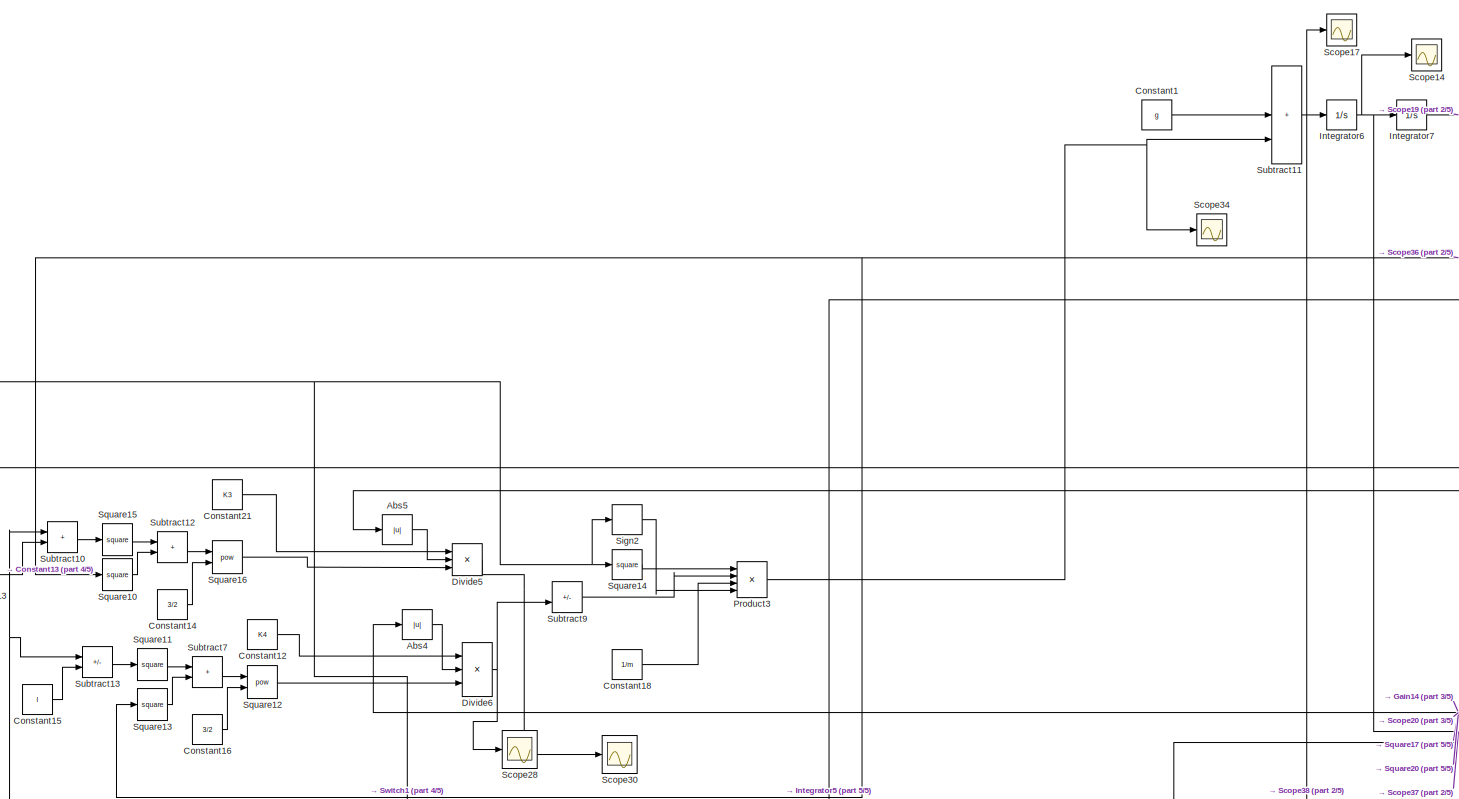
[diagram: root canvas - part 1/5, top right region]
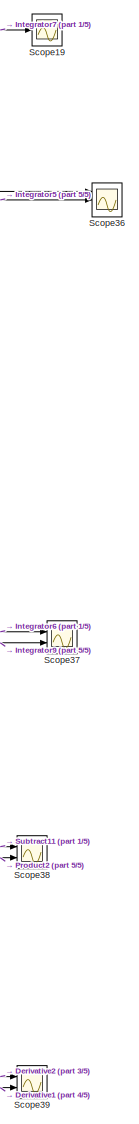
[diagram: root canvas - part 2/5, middle right region]
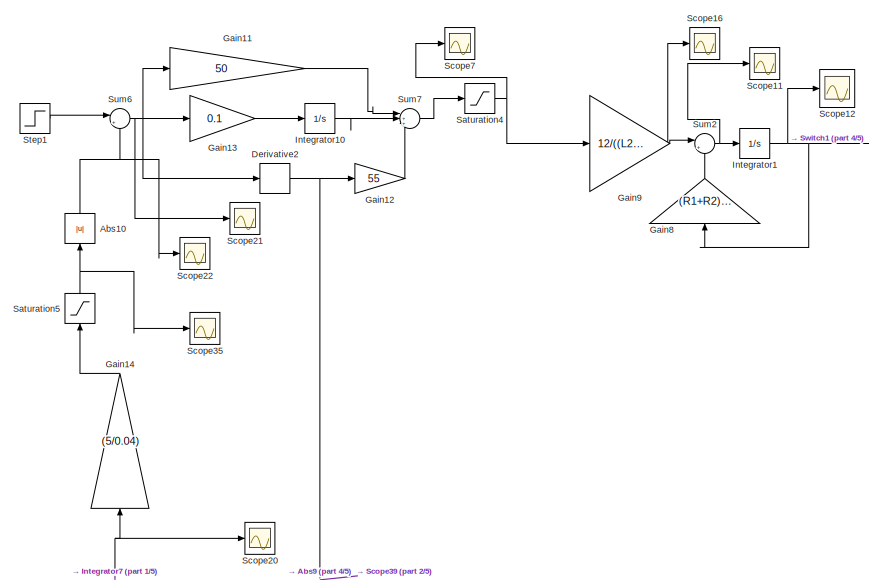
[diagram: root canvas - part 3/5, middle left region]
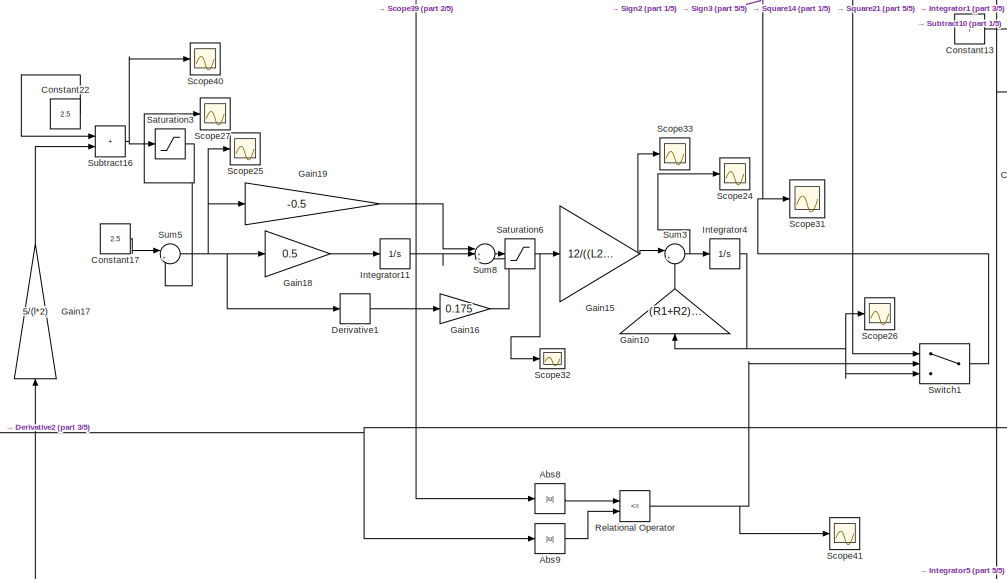
[diagram: root canvas - part 4/5, central region]
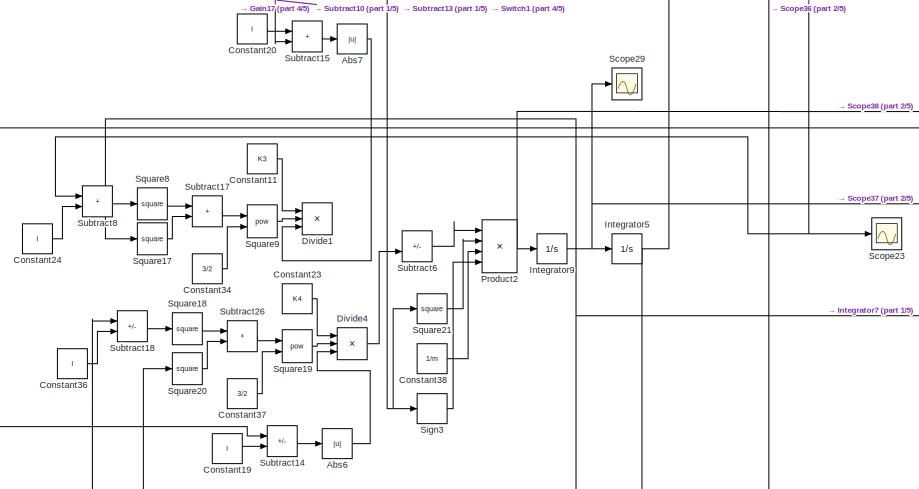
[diagram: root canvas - part 5/5, bottom right region]
MODEL mdl_a25b88f86b72
KIND model
CONFIG AbsTol = auto
CONFIG EnableMultiTasking = off
CONFIG FixedStep = 1e-3
CONFIG MaxStep = auto
CONFIG MinStep = auto
CONFIG RelTol = 1e-3
CONFIG SampleTimeConstraint = Unconstrained
CONFIG SolverName = ode3
CONFIG StartTime = 0.0
CONFIG StopTime = 5
BLOCK [Abs] Abs10
  NameLocation = right
  SaturateOnIntegerOverflow = off
BLOCK [Abs] Abs4
  SaturateOnIntegerOverflow = off
BLOCK [Abs] Abs5
  SaturateOnIntegerOverflow = off
BLOCK [Abs] Abs6
  SaturateOnIntegerOverflow = off
BLOCK [Abs] Abs7
  SaturateOnIntegerOverflow = off
BLOCK [Abs] Abs8
  SaturateOnIntegerOverflow = off
BLOCK [Abs] Abs9
  SaturateOnIntegerOverflow = off
BLOCK [Constant] Constant1
  Value = g
BLOCK [Constant] Constant11
  Value = K3
BLOCK [Constant] Constant12
  Value = K4
BLOCK [Constant] Constant13
  Value = l
BLOCK [Constant] Constant14
  Value = 3/2
BLOCK [Constant] Constant15
  Value = l
BLOCK [Constant] Constant16
  Value = 3/2
BLOCK [Constant] Constant17
  Value = 2.5
BLOCK [Constant] Constant18
  Value = 1/m
BLOCK [Constant] Constant19
  Value = l
BLOCK [Constant] Constant20
  Value = l
BLOCK [Constant] Constant21
  Value = K3
BLOCK [Constant] Constant22
  Value = 2.5
BLOCK [Constant] Constant23
  Value = K4
BLOCK [Constant] Constant24
  Value = l
BLOCK [Constant] Constant34
  Value = 3/2
BLOCK [Constant] Constant36
  Value = l
BLOCK [Constant] Constant37
  Value = 3/2
BLOCK [Constant] Constant38
  Value = 1/m
BLOCK [Derivative] Derivative1
BLOCK [Derivative] Derivative2
BLOCK [Product] Divide1
  Inputs = */*
  Ports = [3, 1]
BLOCK [Product] Divide4
  Inputs = */*
  Ports = [3, 1]
BLOCK [Product] Divide5
  Inputs = **/
  Ports = [3, 1]
BLOCK [Product] Divide6
  Inputs = **/
  Ports = [3, 1]
BLOCK [Gain] Gain10
  Gain = (R1+R2)/(L1+L2)
  NameLocation = right
BLOCK [Gain] Gain11
  Gain = 50
BLOCK [Gain] Gain12
  Gain = 55
BLOCK [Gain] Gain13
  Gain = 0.1
BLOCK [Gain] Gain14
  Gain = (5/0.04)
  NameLocation = right
BLOCK [Gain] Gain15
  Gain = 12/((L2+L1)*5)
BLOCK [Gain] Gain16
  Gain = 0.175
BLOCK [Gain] Gain17
  Gain = 5/(l*2)
  NameLocation = right
BLOCK [Gain] Gain18
  Gain = 0.5
BLOCK [Gain] Gain19
  Gain = -0.5
BLOCK [Gain] Gain8
  Gain = (R1+R2)/(L1+L2)
  NameLocation = right
BLOCK [Gain] Gain9
  Gain = 12/((L2+L1)*5)
BLOCK [Integrator] Integrator1
  Ports = [1, 1]
BLOCK [Integrator] Integrator10
  Ports = [1, 1]
BLOCK [Integrator] Integrator11
  Ports = [1, 1]
BLOCK [Integrator] Integrator4
  Ports = [1, 1]
BLOCK [Integrator] Integrator5
  InitialCondition = l
  Ports = [1, 1]
BLOCK [Integrator] Integrator6
  Ports = [1, 1]
BLOCK [Integrator] Integrator7
  InitialCondition = -0.03
  Ports = [1, 1]
BLOCK [Integrator] Integrator9
  Ports = [1, 1]
BLOCK [Product] Product2
  Inputs = 4
  Ports = [4, 1]
BLOCK [Product] Product3
  Inputs = 4
  Ports = [4, 1]
BLOCK [RelationalOperator] Relational Operator
  InputSameDT = off
  Operator = <=
  OutDataTypeStr = boolean
  Ports = [2, 1]
  RndMeth = Simplest
BLOCK [Saturate] Saturation3
  LowerLimit = 0
  UpperLimit = 5
BLOCK [Saturate] Saturation4
  LowerLimit = -5
  UpperLimit = 5
BLOCK [Saturate] Saturation5
  LowerLimit = -5
  NameLocation = right
  UpperLimit = 0
BLOCK [Saturate] Saturation6
  LowerLimit = -5
  UpperLimit = 5
BLOCK [Scope] Scope11
  Floating = off
  NumInputPorts = 1
  Ports = [1]
  ScopeSpecificationString = Simulink.scopes.TimeScopeBlockCfg('CurrentConfiguration', extmgr.ConfigurationSet(extmgr.Configuration('Core','General UI',true),extmgr.Configuration('Core','Source UI',true),extmgr.Configuration('Sources','WiredSimulink',true,'DataLoggingVariableName','ScopeData3'),extmgr.Configuration('Visuals','Time Domain',true,'SerializedDisplays',{struct('MinYLimReal','-41.79521','MaxYLimReal','56.73091','YL...<+1446ch>
BLOCK [Scope] Scope12
  Floating = off
  NumInputPorts = 1
  Ports = [1]
  ScopeSpecificationString = Simulink.scopes.TimeScopeBlockCfg('CurrentConfiguration', extmgr.ConfigurationSet(extmgr.Configuration('Core','General UI',true),extmgr.Configuration('Core','Source UI',true),extmgr.Configuration('Sources','WiredSimulink',true,'DataLoggingVariableName','ScopeData4'),extmgr.Configuration('Visuals','Time Domain',true,'SerializedDisplays',{struct('MinYLimReal','-1.53455','MaxYLimReal','1.83717','YLab...<+1399ch>
BLOCK [Scope] Scope14
  Floating = off
  NumInputPorts = 1
  Ports = [1]
  ScopeSpecificationString = Simulink.scopes.TimeScopeBlockCfg('CurrentConfiguration', extmgr.ConfigurationSet(extmgr.Configuration('Core','General UI',true),extmgr.Configuration('Core','Source UI',true),extmgr.Configuration('Sources','WiredSimulink',true,'DataLoggingVariableName','ScopeData6'),extmgr.Configuration('Visuals','Time Domain',true,'SerializedDisplays',{struct('MinYLimReal','-1.89378','MaxYLimReal','31.08525','YLa...<+1420ch>
BLOCK [Scope] Scope16
  Floating = off
  NumInputPorts = 1
  Ports = [1]
  ScopeSpecificationString = Simulink.scopes.TimeScopeBlockCfg('CurrentConfiguration', extmgr.ConfigurationSet(extmgr.Configuration('Core','General UI',true),extmgr.Configuration('Core','Source UI',true),extmgr.Configuration('Sources','WiredSimulink',true,'DataLoggingVariableName','ScopeData8'),extmgr.Configuration('Visuals','Time Domain',true,'SerializedDisplays',{struct('MinYLimReal','-6859.08709','MaxYLimReal','1870.10948'...<+1434ch>
BLOCK [Scope] Scope17
  Floating = off
  NumInputPorts = 1
  Ports = [1]
  ScopeSpecificationString = Simulink.scopes.TimeScopeBlockCfg('CurrentConfiguration', extmgr.ConfigurationSet(extmgr.Configuration('Core','General UI',true),extmgr.Configuration('Core','Source UI',true),extmgr.Configuration('Sources','WiredSimulink',true,'DataLoggingVariableName','ScopeData9'),extmgr.Configuration('Visuals','Time Domain',true,'SerializedDisplays',{struct('MinYLimReal','5.14606','MaxYLimReal','17.79769','YLab...<+1444ch>
BLOCK [Scope] Scope19
  Floating = off
  NumInputPorts = 1
  Ports = [1]
  ScopeSpecificationString = Simulink.scopes.TimeScopeBlockCfg('CurrentConfiguration', extmgr.ConfigurationSet(extmgr.Configuration('Core','General UI',true),extmgr.Configuration('Core','Source UI',true),extmgr.Configuration('Sources','WiredSimulink',true,'DataLoggingVariableName','ScopeData11'),extmgr.Configuration('Visuals','Time Domain',true,'SerializedDisplays',{struct('MinYLimReal','-0.53969','MaxYLimReal','0.31817','YLa...<+1419ch>
BLOCK [Scope] Scope20
  Floating = off
  NumInputPorts = 1
  Ports = [1]
  ScopeSpecificationString = Simulink.scopes.TimeScopeBlockCfg('CurrentConfiguration', extmgr.ConfigurationSet(extmgr.Configuration('Core','General UI',true),extmgr.Configuration('Core','Source UI',true),extmgr.Configuration('Sources','WiredSimulink',true,'DataLoggingVariableName','ScopeData13'),extmgr.Configuration('Visuals','Time Domain',true,'SerializedDisplays',{struct('MinYLimReal','-0.16962','MaxYLimReal','0.04246','YLa...<+1419ch>
BLOCK [Scope] Scope21
  Floating = off
  NumInputPorts = 1
  Ports = [1]
  ScopeSpecificationString = Simulink.scopes.TimeScopeBlockCfg('CurrentConfiguration', extmgr.ConfigurationSet(extmgr.Configuration('Core','General UI',true),extmgr.Configuration('Core','Source UI',true),extmgr.Configuration('Sources','WiredSimulink',true,'DataLoggingVariableName','ScopeData14'),extmgr.Configuration('Visuals','Time Domain',true,'SerializedDisplays',{struct('MinYLimReal','-13.30424','MaxYLimReal','5.8972','YLa...<+1414ch>
BLOCK [Scope] Scope22
  Floating = off
  NumInputPorts = 1
  Ports = [1]
  ScopeSpecificationString = Simulink.scopes.TimeScopeBlockCfg('CurrentConfiguration', extmgr.ConfigurationSet(extmgr.Configuration('Core','General UI',true),extmgr.Configuration('Core','Source UI',true),extmgr.Configuration('Sources','WiredSimulink',true,'DataLoggingVariableName','ScopeData15'),extmgr.Configuration('Visuals','Time Domain',true,'SerializedDisplays',{struct('MinYLimReal','-13.30424','MaxYLimReal','5.8972','YLa...<+1440ch>
BLOCK [Scope] Scope23
  Floating = off
  NumInputPorts = 1
  Ports = [1]
  ScopeSpecificationString = Simulink.scopes.TimeScopeBlockCfg('CurrentConfiguration', extmgr.ConfigurationSet(extmgr.Configuration('Core','General UI',true),extmgr.Configuration('Core','Source UI',true),extmgr.Configuration('Sources','WiredSimulink',true,'DataLoggingVariableName','ScopeData16'),extmgr.Configuration('Visuals','Time Domain',true,'SerializedDisplays',{struct('MinYLimReal','-0.01793','MaxYLimReal','0.03257','YLa...<+1419ch>
BLOCK [Scope] Scope24
  Floating = off
  NumInputPorts = 1
  Ports = [1]
  ScopeSpecificationString = Simulink.scopes.TimeScopeBlockCfg('CurrentConfiguration', extmgr.ConfigurationSet(extmgr.Configuration('Core','General UI',true),extmgr.Configuration('Core','Source UI',true),extmgr.Configuration('Sources','WiredSimulink',true,'DataLoggingVariableName','ScopeData17'),extmgr.Configuration('Visuals','Time Domain',true,'SerializedDisplays',{struct('MinYLimReal','-41.79521','MaxYLimReal','56.73091','Y...<+1446ch>
BLOCK [Scope] Scope25
  Floating = off
  NumInputPorts = 1
  Ports = [1]
  ScopeSpecificationString = Simulink.scopes.TimeScopeBlockCfg('CurrentConfiguration', extmgr.ConfigurationSet(extmgr.Configuration('Core','General UI',true),extmgr.Configuration('Core','Source UI',true),extmgr.Configuration('Sources','WiredSimulink',true,'DataLoggingVariableName','ScopeData18'),extmgr.Configuration('Visuals','Time Domain',true,'SerializedDisplays',{struct('MinYLimReal','-8.4966','MaxYLimReal','-2.59008','YLa...<+1435ch>
BLOCK [Scope] Scope26
  Floating = off
  NumInputPorts = 1
  Ports = [1]
  ScopeSpecificationString = Simulink.scopes.TimeScopeBlockCfg('CurrentConfiguration', extmgr.ConfigurationSet(extmgr.Configuration('Core','General UI',true),extmgr.Configuration('Core','Source UI',true),extmgr.Configuration('Sources','WiredSimulink',true,'DataLoggingVariableName','ScopeData19'),extmgr.Configuration('Visuals','Time Domain',true,'SerializedDisplays',{struct('MinYLimReal','-1.44289','MaxYLimReal','4.32361','YLa...<+1419ch>
BLOCK [Scope] Scope27
  Floating = off
  NumInputPorts = 1
  Ports = [1]
  ScopeSpecificationString = Simulink.scopes.TimeScopeBlockCfg('CurrentConfiguration', extmgr.ConfigurationSet(extmgr.Configuration('Core','General UI',true),extmgr.Configuration('Core','Source UI',true),extmgr.Configuration('Sources','WiredSimulink',true,'DataLoggingVariableName','ScopeData20'),extmgr.Configuration('Visuals','Time Domain',true,'SerializedDisplays',{struct('MinYLimReal','-8.4966','MaxYLimReal','-2.59008','YLa...<+1442ch>
BLOCK [Scope] Scope28
  Floating = off
  NumInputPorts = 1
  Ports = [1]
  ScopeSpecificationString = Simulink.scopes.TimeScopeBlockCfg('CurrentConfiguration', extmgr.ConfigurationSet(extmgr.Configuration('Core','General UI',true),extmgr.Configuration('Core','Source UI',true),extmgr.Configuration('Sources','WiredSimulink',true,'DataLoggingVariableName','ScopeData21'),extmgr.Configuration('Visuals','Time Domain',true,'SerializedDisplays',{struct('MinYLimReal','-0.00604','MaxYLimReal','0.65458','YLa...<+1396ch>
BLOCK [Scope] Scope29
  Floating = off
  NumInputPorts = 1
  Ports = [1]
  ScopeSpecificationString = Simulink.scopes.TimeScopeBlockCfg('CurrentConfiguration', extmgr.ConfigurationSet(extmgr.Configuration('Core','General UI',true),extmgr.Configuration('Core','Source UI',true),extmgr.Configuration('Sources','WiredSimulink',true,'DataLoggingVariableName','ScopeData22'),extmgr.Configuration('Visuals','Time Domain',true,'SerializedDisplays',{struct('MinYLimReal','-1.00000','MaxYLimReal','1.00000','YLa...<+1371ch>
BLOCK [Scope] Scope30
  Floating = off
  NumInputPorts = 1
  Ports = [1]
  ScopeSpecificationString = Simulink.scopes.TimeScopeBlockCfg('CurrentConfiguration', extmgr.ConfigurationSet(extmgr.Configuration('Core','General UI',true),extmgr.Configuration('Core','Source UI',true),extmgr.Configuration('Sources','WiredSimulink',true,'DataLoggingVariableName','ScopeData24'),extmgr.Configuration('Visuals','Time Domain',true,'SerializedDisplays',{struct('MinYLimReal','0.00229','MaxYLimReal','0.00657','YLab...<+1394ch>
BLOCK [Scope] Scope31
  Floating = off
  NumInputPorts = 1
  Ports = [1]
  ScopeSpecificationString = Simulink.scopes.TimeScopeBlockCfg('CurrentConfiguration', extmgr.ConfigurationSet(extmgr.Configuration('Core','General UI',true),extmgr.Configuration('Core','Source UI',true),extmgr.Configuration('Sources','WiredSimulink',true,'DataLoggingVariableName','ScopeData25'),extmgr.Configuration('Visuals','Time Domain',true,'SerializedDisplays',{struct('MinYLimReal','-1.33696','MaxYLimReal','1.81522','YLa...<+1396ch>
BLOCK [Scope] Scope32
  Floating = off
  NumInputPorts = 1
  Ports = [1]
  ScopeSpecificationString = Simulink.scopes.TimeScopeBlockCfg('CurrentConfiguration', extmgr.ConfigurationSet(extmgr.Configuration('Core','General UI',true),extmgr.Configuration('Core','Source UI',true),extmgr.Configuration('Sources','WiredSimulink',true,'DataLoggingVariableName','ScopeData26'),extmgr.Configuration('Visuals','Time Domain',true,'SerializedDisplays',{struct('MinYLimReal','-13.30424','MaxYLimReal','5.8972','YLa...<+1392ch>
BLOCK [Scope] Scope33
  Floating = off
  NumInputPorts = 1
  Ports = [1]
  ScopeSpecificationString = Simulink.scopes.TimeScopeBlockCfg('CurrentConfiguration', extmgr.ConfigurationSet(extmgr.Configuration('Core','General UI',true),extmgr.Configuration('Core','Source UI',true),extmgr.Configuration('Sources','WiredSimulink',true,'DataLoggingVariableName','ScopeData27'),extmgr.Configuration('Visuals','Time Domain',true,'SerializedDisplays',{struct('MinYLimReal','-6859.08709','MaxYLimReal','1870.10948...<+1435ch>
BLOCK [Scope] Scope34
  Floating = off
  NumInputPorts = 1
  Ports = [1]
  ScopeSpecificationString = Simulink.scopes.TimeScopeBlockCfg('CurrentConfiguration', extmgr.ConfigurationSet(extmgr.Configuration('Core','General UI',true),extmgr.Configuration('Core','Source UI',true),extmgr.Configuration('Sources','WiredSimulink',true,'DataLoggingVariableName','ScopeData28'),extmgr.Configuration('Visuals','Time Domain',true,'SerializedDisplays',{struct('MinYLimReal','-6.60189','MaxYLimReal','2.43499','YLa...<+1412ch>
BLOCK [Scope] Scope35
  Floating = off
  NumInputPorts = 1
  Ports = [1]
  ScopeSpecificationString = Simulink.scopes.TimeScopeBlockCfg('CurrentConfiguration', extmgr.ConfigurationSet(extmgr.Configuration('Core','General UI',true),extmgr.Configuration('Core','Source UI',true),extmgr.Configuration('Sources','WiredSimulink',true,'DataLoggingVariableName','ScopeData29'),extmgr.Configuration('Visuals','Time Domain',true,'SerializedDisplays',{struct('MinYLimReal','-13.30424','MaxYLimReal','5.8972','YLa...<+1446ch>
BLOCK [Scope] Scope36
  Floating = off
  NumInputPorts = 3
  Ports = [3]
  ScopeSpecificationString = Simulink.scopes.TimeScopeBlockCfg('CurrentConfiguration', extmgr.ConfigurationSet(extmgr.Configuration('Core','General UI',true),extmgr.Configuration('Core','Source UI',true),extmgr.Configuration('Sources','WiredSimulink',true,'DataLoggingVariableName','ScopeData30'),extmgr.Configuration('Visuals','Time Domain',true,'SerializedDisplays',{struct('MinYLimReal','-0.53969','MaxYLimReal','0.31817','YLa...<+1447ch>
BLOCK [Scope] Scope37
  Floating = off
  NumInputPorts = 2
  Ports = [2]
  ScopeSpecificationString = Simulink.scopes.TimeScopeBlockCfg('CurrentConfiguration', extmgr.ConfigurationSet(extmgr.Configuration('Core','General UI',true),extmgr.Configuration('Core','Source UI',true),extmgr.Configuration('Sources','WiredSimulink',true,'DataLoggingVariableName','ScopeData31'),extmgr.Configuration('Visuals','Time Domain',true,'SerializedDisplays',{struct('MinYLimReal','-0.53969','MaxYLimReal','0.31817','YLa...<+1433ch>
BLOCK [Scope] Scope38
  Floating = off
  NumInputPorts = 2
  Ports = [2]
  ScopeSpecificationString = Simulink.scopes.TimeScopeBlockCfg('CurrentConfiguration', extmgr.ConfigurationSet(extmgr.Configuration('Core','General UI',true),extmgr.Configuration('Core','Source UI',true),extmgr.Configuration('Sources','WiredSimulink',true,'DataLoggingVariableName','ScopeData32'),extmgr.Configuration('Visuals','Time Domain',true,'SerializedDisplays',{struct('MinYLimReal','-9.35277','MaxYLimReal','11.23966','YL...<+1462ch>
BLOCK [Scope] Scope39
  Floating = off
  NumInputPorts = 2
  Ports = [2]
  ScopeSpecificationString = Simulink.scopes.TimeScopeBlockCfg('CurrentConfiguration', extmgr.ConfigurationSet(extmgr.Configuration('Core','General UI',true),extmgr.Configuration('Core','Source UI',true),extmgr.Configuration('Sources','WiredSimulink',true,'DataLoggingVariableName','ScopeData33'),extmgr.Configuration('Visuals','Time Domain',true,'SerializedDisplays',{struct('MinYLimReal','-23.98217','MaxYLimReal','20.96626','Y...<+1439ch>
BLOCK [Scope] Scope40
  Floating = off
  NumInputPorts = 1
  Ports = [1]
  ScopeSpecificationString = Simulink.scopes.TimeScopeBlockCfg('CurrentConfiguration', extmgr.ConfigurationSet(extmgr.Configuration('Core','General UI',true),extmgr.Configuration('Core','Source UI',true),extmgr.Configuration('Sources','WiredSimulink',true,'DataLoggingVariableName','ScopeData35'),extmgr.Configuration('Visuals','Time Domain',true,'SerializedDisplays',{struct('MinYLimReal','-8.4966','MaxYLimReal','-2.59008','YLa...<+1441ch>
BLOCK [Scope] Scope41
  Floating = off
  NumInputPorts = 1
  Ports = [1]
  ScopeSpecificationString = Simulink.scopes.TimeScopeBlockCfg('CurrentConfiguration', extmgr.ConfigurationSet(extmgr.Configuration('Core','General UI',true),extmgr.Configuration('Core','Source UI',true),extmgr.Configuration('Sources','WiredSimulink',true,'DataLoggingVariableName','ScopeData36'),extmgr.Configuration('Visuals','Time Domain',true,'SerializedDisplays',{struct('MinYLimReal','-1.44289','MaxYLimReal','4.32361','YLa...<+1427ch>
BLOCK [Scope] Scope7
  Floating = off
  NumInputPorts = 1
  Ports = [1]
  ScopeSpecificationString = Simulink.scopes.TimeScopeBlockCfg('CurrentConfiguration', extmgr.ConfigurationSet(extmgr.Configuration('Core','General UI',true),extmgr.Configuration('Core','Source UI',true),extmgr.Configuration('Sources','WiredSimulink',true,'DataLoggingVariableName','ScopeData39'),extmgr.Configuration('Visuals','Time Domain',true,'SerializedDisplays',{struct('MinYLimReal','-13.30424','MaxYLimReal','5.8972','YLa...<+1392ch>
BLOCK [Signum] Sign2
BLOCK [Signum] Sign3
BLOCK [Math] Square10
  Operator = square
  Ports = [1, 1]
BLOCK [Math] Square11
  Operator = square
  Ports = [1, 1]
BLOCK [Math] Square12
  Operator = pow
  Ports = [2, 1]
BLOCK [Math] Square13
  Operator = square
  Ports = [1, 1]
BLOCK [Math] Square14
  Operator = square
  Ports = [1, 1]
BLOCK [Math] Square15
  Operator = square
  Ports = [1, 1]
BLOCK [Math] Square16
  Operator = pow
  Ports = [2, 1]
BLOCK [Math] Square17
  Operator = square
  Ports = [1, 1]
BLOCK [Math] Square18
  Operator = square
  Ports = [1, 1]
BLOCK [Math] Square19
  Operator = pow
  Ports = [2, 1]
BLOCK [Math] Square20
  Operator = square
  Ports = [1, 1]
BLOCK [Math] Square21
  Operator = square
  Ports = [1, 1]
BLOCK [Math] Square8
  Operator = square
  Ports = [1, 1]
BLOCK [Math] Square9
  Operator = pow
  Ports = [2, 1]
BLOCK [Step] Step1
  After = 3.5
  SampleTime = 0
  Time = 0
BLOCK [Sum] Subtract10
  IconShape = rectangular
  Ports = [2, 1]
BLOCK [Sum] Subtract11
  IconShape = rectangular
  Inputs = +++
  Ports = [3, 1]
BLOCK [Sum] Subtract12
  IconShape = rectangular
  Ports = [2, 1]
BLOCK [Sum] Subtract13
  IconShape = rectangular
  Inputs = +-
  Ports = [2, 1]
BLOCK [Sum] Subtract14
  IconShape = rectangular
  Inputs = +-
  NameLocation = top
  Ports = [2, 1]
BLOCK [Sum] Subtract15
  IconShape = rectangular
  Ports = [2, 1]
BLOCK [Sum] Subtract16
  IconShape = rectangular
  Ports = [2, 1]
BLOCK [Sum] Subtract17
  IconShape = rectangular
  NameLocation = top
  Ports = [2, 1]
BLOCK [Sum] Subtract18
  IconShape = rectangular
  Inputs = +-
  Ports = [2, 1]
BLOCK [Sum] Subtract26
  IconShape = rectangular
  Ports = [2, 1]
BLOCK [Sum] Subtract6
  IconShape = rectangular
  Inputs = +-
  Ports = [2, 1]
BLOCK [Sum] Subtract7
  IconShape = rectangular
  Ports = [2, 1]
BLOCK [Sum] Subtract8
  IconShape = rectangular
  Ports = [2, 1]
BLOCK [Sum] Subtract9
  IconShape = rectangular
  Inputs = --
  Ports = [2, 1]
BLOCK [Sum] Sum2
  Inputs = |+-
  Ports = [2, 1]
BLOCK [Sum] Sum3
  Inputs = |+-
  Ports = [2, 1]
BLOCK [Sum] Sum5
  Inputs = |+-
  Ports = [2, 1]
BLOCK [Sum] Sum6
  Inputs = |+-
  Ports = [2, 1]
BLOCK [Sum] Sum7
  Inputs = |+++
  Ports = [3, 1]
BLOCK [Sum] Sum8
  Inputs = |+++
  Ports = [3, 1]
BLOCK [Switch] Switch1
  Criteria = u2 > Threshold
  InputSameDT = off
  SaturateOnIntegerOverflow = off
  Threshold = 0.5
NET Abs10:1 -> Scope22:1, Sum6:2
LINE Abs4:1 -> Divide6:2
LINE Abs5:1 -> Divide5:2
LINE Abs6:1 -> Divide4:3
LINE Abs7:1 -> Divide1:3
LINE Abs8:1 -> Relational Operator:1
LINE Abs9:1 -> Relational Operator:2
LINE Constant11:1 -> Divide1:1
LINE Constant12:1 -> Divide6:1
LINE Constant13:1 -> Subtract10:2
LINE Constant14:1 -> Square16:2
LINE Constant15:1 -> Subtract13:2
LINE Constant16:1 -> Square12:2
LINE Constant17:1 -> Sum5:1
LINE Constant18:1 -> Product3:3
LINE Constant19:1 -> Subtract14:2
LINE Constant1:1 -> Subtract11:2
LINE Constant20:1 -> Subtract15:1
LINE Constant21:1 -> Divide5:1
LINE Constant22:1 -> Subtract16:1
LINE Constant23:1 -> Divide4:1
LINE Constant24:1 -> Subtract8:2
LINE Constant34:1 -> Square9:2
LINE Constant36:1 -> Subtract18:2
LINE Constant37:1 -> Square19:2
LINE Constant38:1 -> Product2:3
NET Derivative1:1 -> Abs8:1, Gain16:1, Scope39:2
NET Derivative2:1 -> Abs9:1, Gain12:1, Scope39:1
LINE Divide4:1 -> Subtract6:2
LINE Divide5:1 -> Scope30:1
NET Divide6:1 -> Scope28:1, Subtract9:2
LINE Gain10:1 -> Sum3:2
LINE Gain11:1 -> Sum7:1
LINE Gain12:1 -> Sum7:3
LINE Gain13:1 -> Integrator10:1
LINE Gain14:1 -> Saturation5:1
NET Gain15:1 -> Scope33:1, Sum3:1
LINE Gain16:1 -> Sum8:3
LINE Gain17:1 -> Subtract16:2
LINE Gain18:1 -> Integrator11:1
LINE Gain19:1 -> Sum8:1
LINE Gain8:1 -> Sum2:2
NET Gain9:1 -> Scope16:1, Sum2:1
LINE Integrator10:1 -> Sum7:2
LINE Integrator11:1 -> Sum8:2
NET Integrator1:1 -> Gain8:1, Scope12:1, Switch1:1
NET Integrator4:1 -> Gain10:1, Scope26:1, Switch1:3
NET Integrator5:1 -> Gain17:1, Scope23:1, Scope36:2, Subtract10:1, Subtract13:1, Subtract14:1, Subtract15:2, Subtract18:1, Subtract8:1
NET Integrator6:1 -> Integrator7:1, Scope14:1, Scope37:1
NET Integrator7:1 -> Abs4:1, Abs5:1, Gain14:1, Scope19:1, Scope20:1, Scope36:1, Square10:1, Square13:1, Square17:1, Square20:1
NET Integrator9:1 -> Integrator5:1, Scope29:1, Scope37:2
NET Product2:1 -> Integrator9:1, Scope38:2
NET Product3:1 -> Scope34:1, Subtract11:3
NET Relational Operator:1 -> Scope41:1, Switch1:2
NET Saturation3:1 -> Scope27:1, Sum5:2
NET Saturation4:1 -> Gain9:1, Scope7:1
NET Saturation5:1 -> Abs10:1, Scope35:1
NET Saturation6:1 -> Gain15:1, Scope32:1
LINE Sign2:1 -> Product3:4
LINE Sign3:1 -> Product2:4
LINE Square10:1 -> Subtract12:2
LINE Square11:1 -> Subtract7:1
LINE Square12:1 -> Divide6:3
LINE Square13:1 -> Subtract7:2
LINE Square14:1 -> Product3:1
LINE Square15:1 -> Subtract12:1
LINE Square16:1 -> Divide5:3
LINE Square17:1 -> Subtract17:2
LINE Square18:1 -> Subtract26:1
LINE Square19:1 -> Divide4:2
LINE Square20:1 -> Subtract26:2
LINE Square21:1 -> Product2:2
LINE Square8:1 -> Subtract17:1
LINE Square9:1 -> Divide1:2
LINE Step1:1 -> Sum6:1
LINE Subtract10:1 -> Square15:1
NET Subtract11:1 -> Integrator6:1, Scope17:1, Scope38:1
LINE Subtract12:1 -> Square16:1
LINE Subtract13:1 -> Square11:1
LINE Subtract14:1 -> Abs6:1
LINE Subtract15:1 -> Abs7:1
NET Subtract16:1 -> Saturation3:1, Scope40:1
LINE Subtract17:1 -> Square9:1
LINE Subtract18:1 -> Square18:1
LINE Subtract26:1 -> Square19:1
LINE Subtract6:1 -> Product2:1
LINE Subtract7:1 -> Square12:1
LINE Subtract8:1 -> Square8:1
LINE Subtract9:1 -> Product3:2
NET Sum2:1 -> Integrator1:1, Scope11:1
NET Sum3:1 -> Integrator4:1, Scope24:1
NET Sum5:1 -> Derivative1:1, Gain18:1, Gain19:1, Scope25:1
NET Sum6:1 -> Derivative2:1, Gain11:1, Gain13:1, Scope21:1
LINE Sum7:1 -> Saturation4:1
LINE Sum8:1 -> Saturation6:1
NET Switch1:1 -> Scope31:1, Sign2:1, Sign3:1, Square14:1, Square21:1
note: NET lines group one-source signal fan-out (src -> all destinations, sorted); 1:1 wires keep LINE
